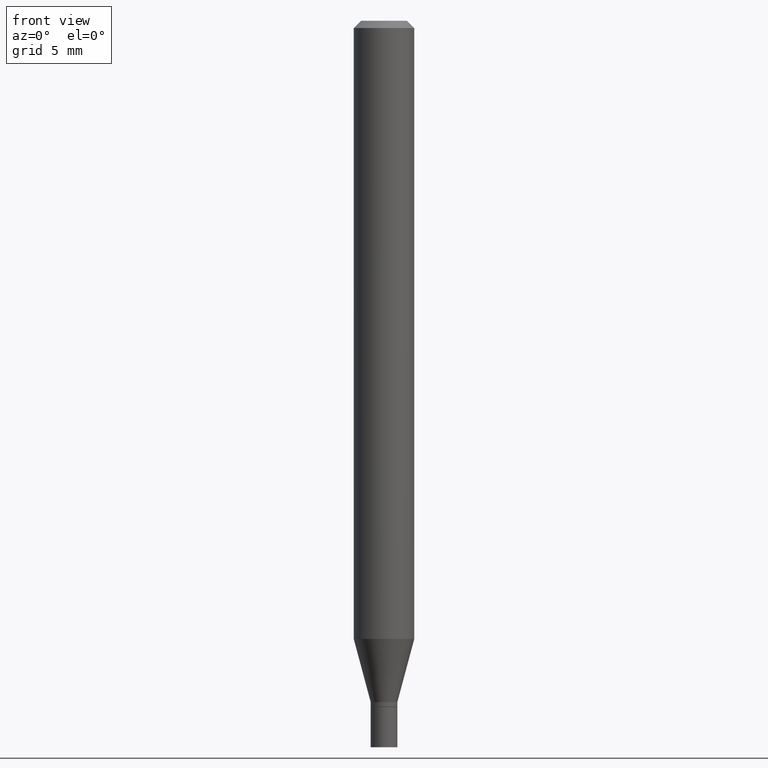
[diagram: clean part render]
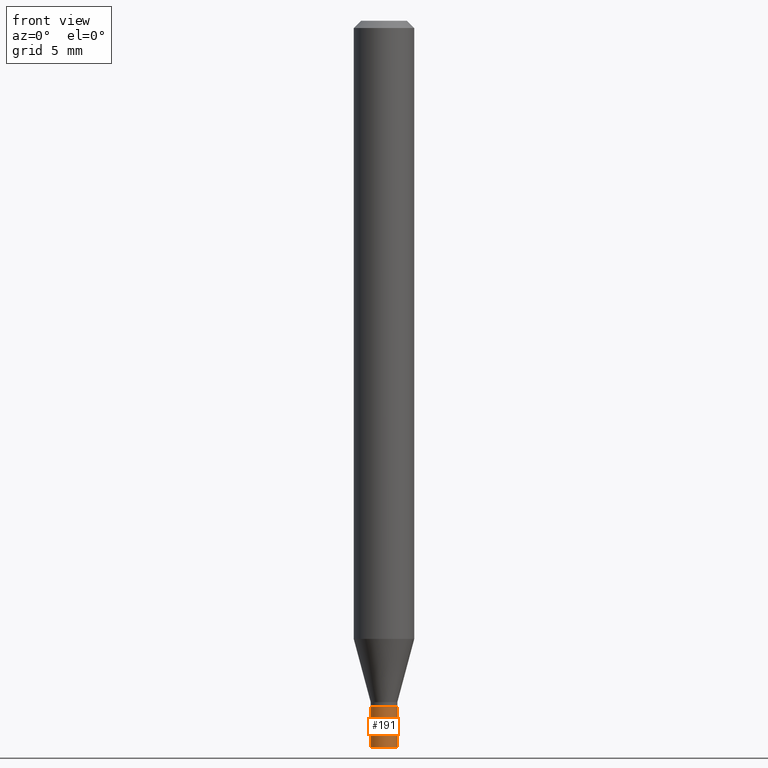
[diagram: same view with one face highlighted and labeled with its STEP entity id]
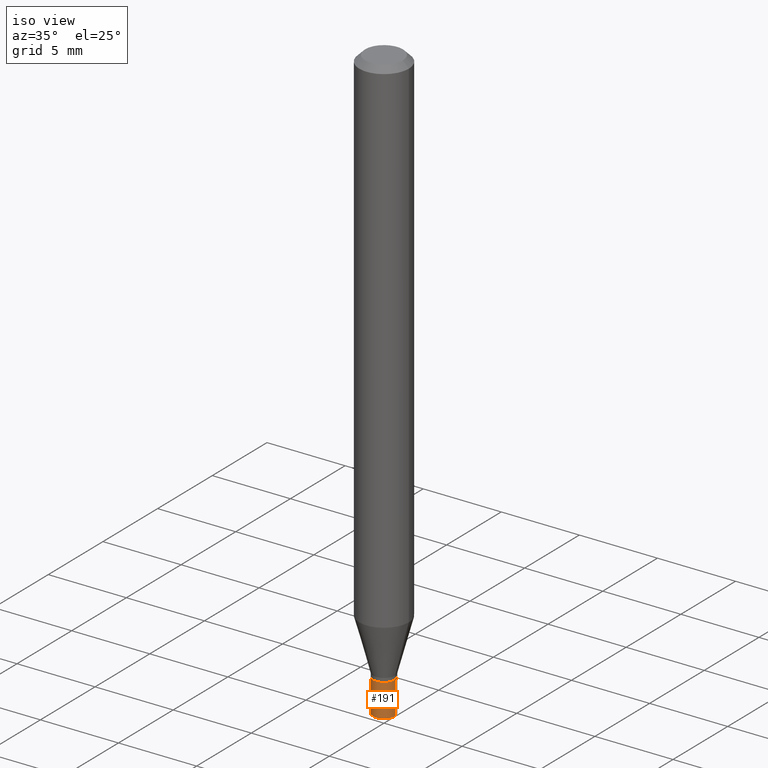
[diagram: same view with one face highlighted and labeled with its STEP entity id]
A machine part, front view. The second image highlights one B-rep face of the part: STEP entity #191.
A second angle (iso view) of the same face is appended — the face is thin or edge-on in the first view.
In plain terms, the highlighted cylindrical surface (edge-blend (fillet) strip) has radius 0.6985 mm, axis along (-0, 0, 1).
Its self-contained STEP definition (entity closure, byte-faithful):
#3 = CIRCLE ( 'NONE', #259, 0.02750000000000000014 ) ;
#7 = CARTESIAN_POINT ( 'NONE',  ( 3.668203209277704895E-29, -5.237222008264718177E-15, -1.500000000000000222 ) ) ;
#10 = DIRECTION ( 'NONE',  ( 1.000000000000000000, -6.982962677686279332E-15, 0.000000000000000000 ) ) ;
#11 = VERTEX_POINT ( 'NONE', #342 ) ;
#44 = DIRECTION ( 'NONE',  ( 1.000000000000000000, -6.982962677686266711E-15, 4.876176775795935793E-29 ) ) ;
#54 = ORIENTED_EDGE ( 'NONE', *, *, #241, .T. ) ;
#64 = ORIENTED_EDGE ( 'NONE', *, *, #115, .F. ) ;
#65 = VECTOR ( 'NONE', #369, 39.37007874015748143 ) ;
#73 = DIRECTION ( 'NONE',  ( -2.445468806185136597E-29, 3.491481338843145583E-15, 1.000000000000000000 ) ) ;
#77 = EDGE_LOOP ( 'NONE', ( #290, #54, #442, #64 ) ) ;
#94 = VERTEX_POINT ( 'NONE', #303 ) ;
#115 = EDGE_CURVE ( 'NONE', #11, #94, #277, .T. ) ;
#145 = CARTESIAN_POINT ( 'NONE',  ( 0.000000000000000000, 0.000000000000000000, 0.000000000000000000 ) ) ;
#153 = CARTESIAN_POINT ( 'NONE',  ( 3.465229298364339647E-29, -4.947429057140738329E-15, -1.417000000000000259 ) ) ;
#157 = VECTOR ( 'NONE', #199, 39.37007874015748143 ) ;
#167 = EDGE_CURVE ( 'NONE', #415, #94, #387, .T. ) ;
#168 = CARTESIAN_POINT ( 'NONE',  ( -0.02750000000000000014, 1.953992523340275521E-16, -1.352707149820099181E-30 ) ) ;
#173 = DIRECTION ( 'NONE',  ( -2.445468806185136597E-29, 3.491481338843145583E-15, 1.000000000000000000 ) ) ;
#191 = ADVANCED_FACE ( 'NONE', ( #246 ), #444, .T. ) ;
#199 = DIRECTION ( 'NONE',  ( -2.445468806185136877E-29, 3.491481338843145188E-15, 1.000000000000000000 ) ) ;
#202 = VERTEX_POINT ( 'NONE', #217 ) ;
#206 = AXIS2_PLACEMENT_3D ( 'NONE', #153, #301, #374 ) ;
#217 = CARTESIAN_POINT ( 'NONE',  ( -0.02750000000000000014, -4.896926280368699739E-15, -1.500000000000000222 ) ) ;
#219 = LINE ( 'NONE', #168, #65 ) ;
#229 = EDGE_CURVE ( 'NONE', #202, #11, #219, .T. ) ;
#241 = EDGE_CURVE ( 'NONE', #202, #415, #3, .T. ) ;
#246 = FACE_OUTER_BOUND ( 'NONE', #77, .T. ) ;
#259 = AXIS2_PLACEMENT_3D ( 'NONE', #7, #173, #10 ) ;
#277 = CIRCLE ( 'NONE', #206, 0.02750000000000000014 ) ;
#290 = ORIENTED_EDGE ( 'NONE', *, *, #229, .F. ) ;
#296 = AXIS2_PLACEMENT_3D ( 'NONE', #145, #73, #44 ) ;
#301 = DIRECTION ( 'NONE',  ( -2.445468806185136597E-29, 3.491481338843145583E-15, 1.000000000000000000 ) ) ;
#303 = CARTESIAN_POINT ( 'NONE',  ( 0.02750000000000000014, -5.139460530777110821E-15, -1.417000000000000259 ) ) ;
#342 = CARTESIAN_POINT ( 'NONE',  ( -0.02750000000000000014, -4.896926280368699739E-15, -1.417000000000000259 ) ) ;
#369 = DIRECTION ( 'NONE',  ( -2.445468806185136877E-29, 3.491481338843145188E-15, 1.000000000000000000 ) ) ;
#374 = DIRECTION ( 'NONE',  ( 1.000000000000000000, -6.982962677686279332E-15, 0.000000000000000000 ) ) ;
#377 = CARTESIAN_POINT ( 'NONE',  ( 0.02750000000000000014, -5.429253481901091458E-15, -1.500000000000000222 ) ) ;
#387 = LINE ( 'NONE', #458, #157 ) ;
#415 = VERTEX_POINT ( 'NONE', #377 ) ;
#442 = ORIENTED_EDGE ( 'NONE', *, *, #167, .T. ) ;
#444 = CYLINDRICAL_SURFACE ( 'NONE', #296, 0.02750000000000000014 ) ;
#458 = CARTESIAN_POINT ( 'NONE',  ( 0.02750000000000000014, -1.920314736363723444E-16, 1.340948613343882413E-30 ) ) ;